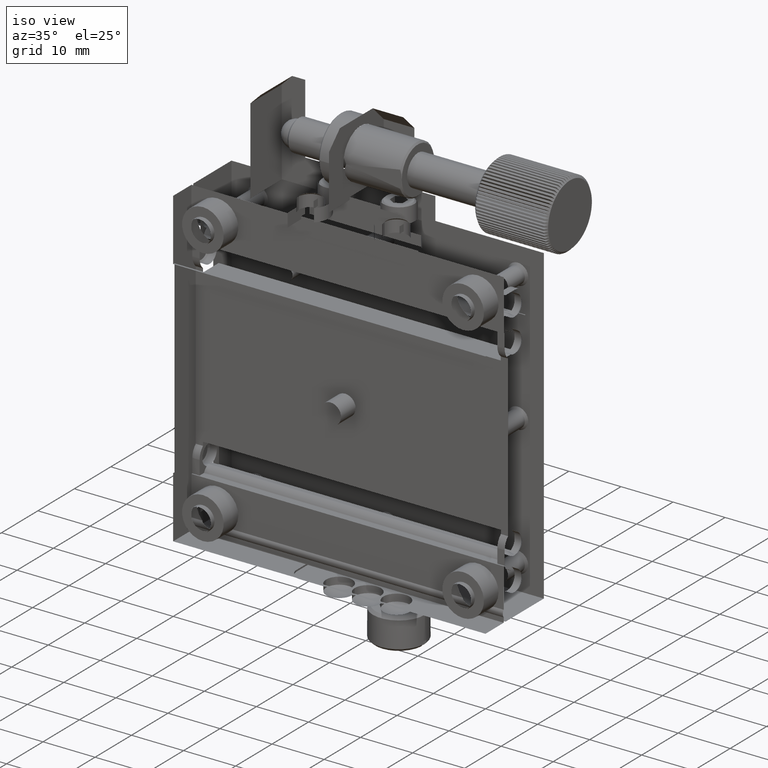
[diagram: clean part render]
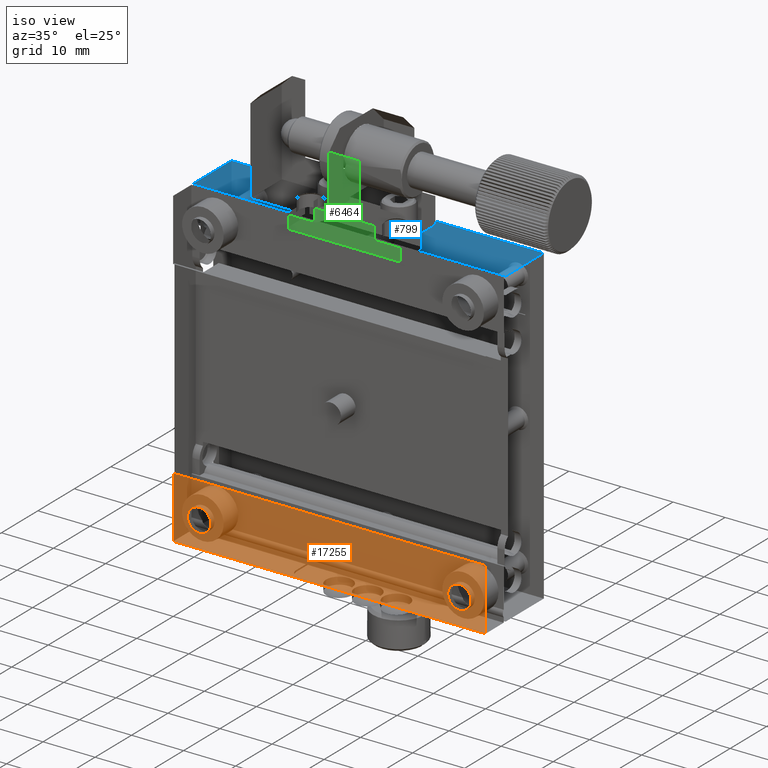
[diagram: same view with three faces highlighted in distinct colors, each labeled with its STEP entity id]
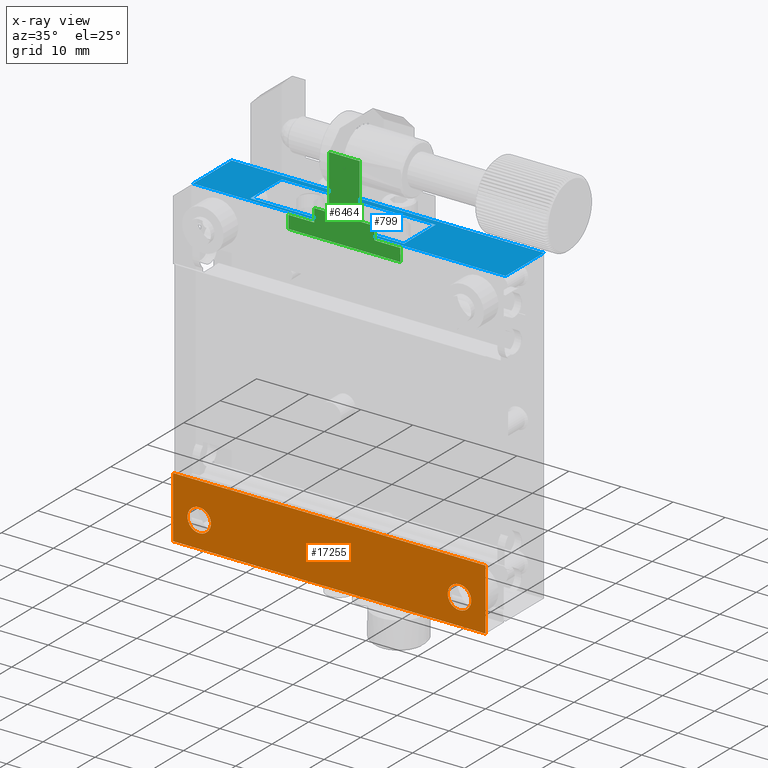
[diagram: x-ray of the same camera — body ghosted, the three highlighted faces saturated]
A machine part, iso view with three faces highlighted in distinct colors.
The next image is the same camera in x-ray (body ghosted, the three faces saturated) — at least one of them is partly hidden behind the body in this view.
Their STEP definitions:

[orange] entity #17255 — the highlighted planar face has unit normal (0, 1, 0).
#211 = CIRCLE ( 'NONE', #15227, 2.250000000000001776 ) ;
#299 = VECTOR ( 'NONE', #8087, 1000.000000000000000 ) ;
#310 = CARTESIAN_POINT ( 'NONE',  ( -30.00000000000000000, 0.000000000000000000, -18.14999999999999858 ) ) ;
#392 = CARTESIAN_POINT ( 'NONE',  ( -25.00000000000000000, 0.000000000000000000, -27.25000000000000355 ) ) ;
#398 = ORIENTED_EDGE ( 'NONE', *, *, #1679, .T. ) ;
#862 = FACE_OUTER_BOUND ( 'NONE', #1036, .T. ) ;
#1036 = EDGE_LOOP ( 'NONE', ( #5930, #7411, #4755, #13296 ) ) ;
#1329 = LINE ( 'NONE', #2738, #5426 ) ;
#1502 = LINE ( 'NONE', #14813, #299 ) ;
#1542 = CARTESIAN_POINT ( 'NONE',  ( 25.00000000000000000, 0.000000000000000000, -25.00000000000000000 ) ) ;
#1679 = EDGE_CURVE ( 'NONE', #12200, #12200, #8575, .T. ) ;
#2049 = VERTEX_POINT ( 'NONE', #11546 ) ;
#2191 = DIRECTION ( 'NONE',  ( 0.000000000000000000, -0.000000000000000000, 1.000000000000000000 ) ) ;
#2738 = CARTESIAN_POINT ( 'NONE',  ( -30.00000000000000000, 0.000000000000000000, -28.39999999999999858 ) ) ;
#3033 = DIRECTION ( 'NONE',  ( 0.000000000000000000, 0.000000000000000000, -1.000000000000000000 ) ) ;
#3508 = VERTEX_POINT ( 'NONE', #310 ) ;
#3601 = AXIS2_PLACEMENT_3D ( 'NONE', #15483, #17001, #2191 ) ;
#4055 = LINE ( 'NONE', #6465, #16948 ) ;
#4341 = VERTEX_POINT ( 'NONE', #5843 ) ;
#4755 = ORIENTED_EDGE ( 'NONE', *, *, #16997, .T. ) ;
#4757 = PLANE ( 'NONE',  #3601 ) ;
#4904 = DIRECTION ( 'NONE',  ( 0.000000000000000000, 0.000000000000000000, -1.000000000000000000 ) ) ;
#5280 = EDGE_LOOP ( 'NONE', ( #398 ) ) ;
#5426 = VECTOR ( 'NONE', #14808, 1000.000000000000000 ) ;
#5843 = CARTESIAN_POINT ( 'NONE',  ( 30.00000000000000000, 0.000000000000000000, -18.14999999999999858 ) ) ;
#5930 = ORIENTED_EDGE ( 'NONE', *, *, #12077, .F. ) ;
#6104 = ORIENTED_EDGE ( 'NONE', *, *, #16292, .T. ) ;
#6465 = CARTESIAN_POINT ( 'NONE',  ( 30.00000000000000000, 0.000000000000000000, -28.39999999999999858 ) ) ;
#6482 = VECTOR ( 'NONE', #8332, 1000.000000000000000 ) ;
#6598 = AXIS2_PLACEMENT_3D ( 'NONE', #15890, #9163, #4904 ) ;
#7013 = EDGE_CURVE ( 'NONE', #13866, #13443, #14974, .T. ) ;
#7411 = ORIENTED_EDGE ( 'NONE', *, *, #9480, .T. ) ;
#8087 = DIRECTION ( 'NONE',  ( 1.000000000000000000, 0.000000000000000000, -0.000000000000000000 ) ) ;
#8332 = DIRECTION ( 'NONE',  ( 1.000000000000000000, 0.000000000000000000, -0.000000000000000000 ) ) ;
#8575 = CIRCLE ( 'NONE', #6598, 2.250000000000001776 ) ;
#9163 = DIRECTION ( 'NONE',  ( 0.000000000000000000, -1.000000000000000000, 0.000000000000000000 ) ) ;
#9480 = EDGE_CURVE ( 'NONE', #3508, #4341, #1502, .T. ) ;
#9620 = DIRECTION ( 'NONE',  ( 0.000000000000000000, -1.000000000000000000, 0.000000000000000000 ) ) ;
#9793 = CARTESIAN_POINT ( 'NONE',  ( -30.00000000000000000, 0.000000000000000000, -30.00000000000000000 ) ) ;
#11546 = CARTESIAN_POINT ( 'NONE',  ( 25.00000000000000000, 0.000000000000000000, -27.25000000000000355 ) ) ;
#11599 = FACE_BOUND ( 'NONE', #11934, .T. ) ;
#11879 = DIRECTION ( 'NONE',  ( 0.000000000000000000, 0.000000000000000000, -1.000000000000000000 ) ) ;
#11934 = EDGE_LOOP ( 'NONE', ( #6104 ) ) ;
#12077 = EDGE_CURVE ( 'NONE', #3508, #13866, #1329, .T. ) ;
#12200 = VERTEX_POINT ( 'NONE', #392 ) ;
#12920 = FACE_BOUND ( 'NONE', #5280, .T. ) ;
#13289 = CARTESIAN_POINT ( 'NONE',  ( 30.00000000000000000, 0.000000000000000000, -30.00000000000000000 ) ) ;
#13296 = ORIENTED_EDGE ( 'NONE', *, *, #7013, .F. ) ;
#13443 = VERTEX_POINT ( 'NONE', #13289 ) ;
#13866 = VERTEX_POINT ( 'NONE', #9793 ) ;
#14808 = DIRECTION ( 'NONE',  ( 0.000000000000000000, 0.000000000000000000, -1.000000000000000000 ) ) ;
#14813 = CARTESIAN_POINT ( 'NONE',  ( 30.00000000000000000, 0.000000000000000000, -18.14999999999999858 ) ) ;
#14974 = LINE ( 'NONE', #16561, #6482 ) ;
#15227 = AXIS2_PLACEMENT_3D ( 'NONE', #1542, #9620, #3033 ) ;
#15483 = CARTESIAN_POINT ( 'NONE',  ( 30.00000000000000000, 0.000000000000000000, 30.00000000000000000 ) ) ;
#15890 = CARTESIAN_POINT ( 'NONE',  ( -25.00000000000000000, 0.000000000000000000, -25.00000000000000000 ) ) ;
#16292 = EDGE_CURVE ( 'NONE', #2049, #2049, #211, .T. ) ;
#16561 = CARTESIAN_POINT ( 'NONE',  ( 30.00000000000000000, 0.000000000000000000, -30.00000000000000000 ) ) ;
#16948 = VECTOR ( 'NONE', #11879, 1000.000000000000000 ) ;
#16997 = EDGE_CURVE ( 'NONE', #4341, #13443, #4055, .T. ) ;
#17001 = DIRECTION ( 'NONE',  ( 0.000000000000000000, 1.000000000000000000, 0.000000000000000000 ) ) ;
#17255 = ADVANCED_FACE ( 'NONE', ( #862, #12920, #11599 ), #4757, .T. ) ;

[blue] entity #799 — the highlighted planar face has unit normal (0, 0, -1).
#224 = ORIENTED_EDGE ( 'NONE', *, *, #14556, .T. ) ;
#422 = CARTESIAN_POINT ( 'NONE',  ( 30.00000000000000000, 16.00000000000000000, 30.00000000000000000 ) ) ;
#772 = VECTOR ( 'NONE', #14018, 1000.000000000000000 ) ;
#799 = ADVANCED_FACE ( 'NONE', ( #16323, #6924 ), #4175, .T. ) ;
#1183 = CARTESIAN_POINT ( 'NONE',  ( 30.00000000000000000, 16.00000000000000000, 30.00000000000000000 ) ) ;
#1200 = AXIS2_PLACEMENT_3D ( 'NONE', #13670, #1514, #9594 ) ;
#1325 = VERTEX_POINT ( 'NONE', #6190 ) ;
#1514 = DIRECTION ( 'NONE',  ( 0.000000000000000000, 0.000000000000000000, -1.000000000000000000 ) ) ;
#1820 = VECTOR ( 'NONE', #14082, 1000.000000000000000 ) ;
#1916 = VERTEX_POINT ( 'NONE', #5142 ) ;
#2534 = CARTESIAN_POINT ( 'NONE',  ( 30.00000000000000000, 6.200000000000001954, 30.00000000000000000 ) ) ;
#3056 = EDGE_CURVE ( 'NONE', #17071, #8473, #7338, .T. ) ;
#3934 = CARTESIAN_POINT ( 'NONE',  ( 30.00000000000000000, 14.80000000000000071, 30.00000000000000000 ) ) ;
#4175 = PLANE ( 'NONE',  #1200 ) ;
#4332 = CARTESIAN_POINT ( 'NONE',  ( 10.00000000000000178, 16.00000000000000000, 30.00000000000000000 ) ) ;
#4464 = DIRECTION ( 'NONE',  ( -0.000000000000000000, -1.000000000000000000, -0.000000000000000000 ) ) ;
#4506 = EDGE_CURVE ( 'NONE', #8473, #1916, #10120, .T. ) ;
#4741 = ORIENTED_EDGE ( 'NONE', *, *, #11220, .T. ) ;
#5142 = CARTESIAN_POINT ( 'NONE',  ( -30.00000000000000000, 5.500000000000001776, 30.00000000000000000 ) ) ;
#6190 = CARTESIAN_POINT ( 'NONE',  ( 10.00000000000000178, 6.200000000000001954, 30.00000000000000000 ) ) ;
#6888 = CARTESIAN_POINT ( 'NONE',  ( -30.00000000000000000, 16.00000000000000000, 30.00000000000000000 ) ) ;
#6924 = FACE_OUTER_BOUND ( 'NONE', #7079, .T. ) ;
#7079 = EDGE_LOOP ( 'NONE', ( #8612, #10943, #14279, #16539 ) ) ;
#7338 = LINE ( 'NONE', #422, #1820 ) ;
#7522 = EDGE_CURVE ( 'NONE', #10204, #1916, #8833, .T. ) ;
#7849 = DIRECTION ( 'NONE',  ( -1.000000000000000000, 0.000000000000000000, -0.000000000000000000 ) ) ;
#8256 = LINE ( 'NONE', #4332, #15993 ) ;
#8473 = VERTEX_POINT ( 'NONE', #6888 ) ;
#8528 = VECTOR ( 'NONE', #7849, 1000.000000000000000 ) ;
#8612 = ORIENTED_EDGE ( 'NONE', *, *, #7522, .T. ) ;
#8790 = EDGE_LOOP ( 'NONE', ( #224, #4741, #8893, #12033 ) ) ;
#8833 = LINE ( 'NONE', #13000, #15830 ) ;
#8893 = ORIENTED_EDGE ( 'NONE', *, *, #17559, .T. ) ;
#9060 = CARTESIAN_POINT ( 'NONE',  ( -19.50000000000000355, 6.200000000000001954, 30.00000000000000000 ) ) ;
#9319 = VERTEX_POINT ( 'NONE', #14453 ) ;
#9594 = DIRECTION ( 'NONE',  ( -1.000000000000000000, 0.000000000000000000, -0.000000000000000000 ) ) ;
#10120 = LINE ( 'NONE', #14195, #772 ) ;
#10204 = VERTEX_POINT ( 'NONE', #15268 ) ;
#10943 = ORIENTED_EDGE ( 'NONE', *, *, #4506, .F. ) ;
#11122 = LINE ( 'NONE', #12289, #14389 ) ;
#11220 = EDGE_CURVE ( 'NONE', #16356, #9319, #16091, .T. ) ;
#11883 = VERTEX_POINT ( 'NONE', #9060 ) ;
#12009 = LINE ( 'NONE', #1183, #13158 ) ;
#12033 = ORIENTED_EDGE ( 'NONE', *, *, #17436, .T. ) ;
#12289 = CARTESIAN_POINT ( 'NONE',  ( -19.50000000000000355, 16.00000000000000000, 30.00000000000000000 ) ) ;
#13000 = CARTESIAN_POINT ( 'NONE',  ( 30.00000000000000000, 5.500000000000001776, 30.00000000000000000 ) ) ;
#13158 = VECTOR ( 'NONE', #14576, 1000.000000000000000 ) ;
#13670 = CARTESIAN_POINT ( 'NONE',  ( 30.00000000000000000, 16.00000000000000000, 30.00000000000000000 ) ) ;
#13810 = CARTESIAN_POINT ( 'NONE',  ( 30.00000000000000000, 16.00000000000000000, 30.00000000000000000 ) ) ;
#13865 = CARTESIAN_POINT ( 'NONE',  ( 10.00000000000000178, 14.80000000000000071, 30.00000000000000000 ) ) ;
#13972 = DIRECTION ( 'NONE',  ( -1.000000000000000000, 0.000000000000000000, -0.000000000000000000 ) ) ;
#14018 = DIRECTION ( 'NONE',  ( -0.000000000000000000, -1.000000000000000000, -0.000000000000000000 ) ) ;
#14082 = DIRECTION ( 'NONE',  ( -1.000000000000000000, -0.000000000000000000, -0.000000000000000000 ) ) ;
#14103 = EDGE_CURVE ( 'NONE', #17071, #10204, #12009, .T. ) ;
#14195 = CARTESIAN_POINT ( 'NONE',  ( -30.00000000000000000, 8.050000000000000711, 30.00000000000000000 ) ) ;
#14279 = ORIENTED_EDGE ( 'NONE', *, *, #3056, .F. ) ;
#14389 = VECTOR ( 'NONE', #4464, 1000.000000000000000 ) ;
#14453 = CARTESIAN_POINT ( 'NONE',  ( -19.50000000000000355, 14.80000000000000071, 30.00000000000000000 ) ) ;
#14556 = EDGE_CURVE ( 'NONE', #1325, #16356, #8256, .T. ) ;
#14576 = DIRECTION ( 'NONE',  ( -0.000000000000000000, -1.000000000000000000, -0.000000000000000000 ) ) ;
#15211 = VECTOR ( 'NONE', #17257, 1000.000000000000000 ) ;
#15268 = CARTESIAN_POINT ( 'NONE',  ( 30.00000000000000000, 5.500000000000001776, 30.00000000000000000 ) ) ;
#15830 = VECTOR ( 'NONE', #13972, 1000.000000000000000 ) ;
#15993 = VECTOR ( 'NONE', #16236, 1000.000000000000000 ) ;
#16091 = LINE ( 'NONE', #3934, #8528 ) ;
#16103 = LINE ( 'NONE', #2534, #15211 ) ;
#16236 = DIRECTION ( 'NONE',  ( 0.000000000000000000, 1.000000000000000000, 0.000000000000000000 ) ) ;
#16323 = FACE_BOUND ( 'NONE', #8790, .T. ) ;
#16356 = VERTEX_POINT ( 'NONE', #13865 ) ;
#16539 = ORIENTED_EDGE ( 'NONE', *, *, #14103, .T. ) ;
#17071 = VERTEX_POINT ( 'NONE', #13810 ) ;
#17257 = DIRECTION ( 'NONE',  ( 1.000000000000000000, -0.000000000000000000, 0.000000000000000000 ) ) ;
#17436 = EDGE_CURVE ( 'NONE', #11883, #1325, #16103, .T. ) ;
#17559 = EDGE_CURVE ( 'NONE', #9319, #11883, #11122, .T. ) ;

[green] entity #6464 — the highlighted planar face has unit normal (-0, -1, 0).
#121 = CARTESIAN_POINT ( 'NONE',  ( 0.000000000000000000, 0.1999999999999959033, 32.50000000000000000 ) ) ;
#148 = EDGE_CURVE ( 'NONE', #4128, #17031, #1193, .T. ) ;
#151 = LINE ( 'NONE', #13726, #5844 ) ;
#239 = CARTESIAN_POINT ( 'NONE',  ( -3.050510257216836330, 0.1999999999999959588, 32.50000000000000000 ) ) ;
#723 = CARTESIAN_POINT ( 'NONE',  ( -0.2000000000000013989, 0.1999999999999959865, 35.00000000000000000 ) ) ;
#1017 = PLANE ( 'NONE',  #13250 ) ;
#1162 = CARTESIAN_POINT ( 'NONE',  ( -8.000000000000000000, 0.1999999999999959588, 32.50000000000000000 ) ) ;
#1193 = LINE ( 'NONE', #12997, #9942 ) ;
#1216 = EDGE_CURVE ( 'NONE', #1871, #16586, #8589, .T. ) ;
#1257 = LINE ( 'NONE', #6659, #10991 ) ;
#1457 = LINE ( 'NONE', #121, #3326 ) ;
#1569 = DIRECTION ( 'NONE',  ( -1.000000000000000000, 2.521400401129079936E-18, -0.000000000000000000 ) ) ;
#1871 = VERTEX_POINT ( 'NONE', #6658 ) ;
#2066 = CARTESIAN_POINT ( 'NONE',  ( 8.550510257216823007, 0.1999999999999959588, 35.00000000000000000 ) ) ;
#2103 = ORIENTED_EDGE ( 'NONE', *, *, #10789, .F. ) ;
#2104 = DIRECTION ( 'NONE',  ( 1.000000000000000000, 0.000000000000000000, -0.000000000000000000 ) ) ;
#2436 = ORIENTED_EDGE ( 'NONE', *, *, #5169, .T. ) ;
#2463 = CARTESIAN_POINT ( 'NONE',  ( -0.2000000000000012601, 0.1999999999999956257, 45.50000000000000711 ) ) ;
#2517 = DIRECTION ( 'NONE',  ( 1.000000000000000000, -2.521400401129079936E-18, 0.000000000000000000 ) ) ;
#2565 = VERTEX_POINT ( 'NONE', #9445 ) ;
#2619 = DIRECTION ( 'NONE',  ( 0.000000000000000000, 0.000000000000000000, 1.000000000000000000 ) ) ;
#2717 = CARTESIAN_POINT ( 'NONE',  ( 8.550510257216821230, 0.1999999999999959310, 30.00000000000000000 ) ) ;
#2857 = CARTESIAN_POINT ( 'NONE',  ( 5.700000000000000178, 0.1999999999999979294, 45.50000000000000711 ) ) ;
#3326 = VECTOR ( 'NONE', #15018, 1000.000000000000000 ) ;
#3660 = FACE_OUTER_BOUND ( 'NONE', #16777, .T. ) ;
#4029 = VECTOR ( 'NONE', #13285, 1000.000000000000000 ) ;
#4045 = CARTESIAN_POINT ( 'NONE',  ( 13.50000000000000178, 0.1999999999999976796, 30.00000000000000000 ) ) ;
#4112 = CARTESIAN_POINT ( 'NONE',  ( 13.52499999999999858, 0.2249999999999948985, 30.02499999999999858 ) ) ;
#4128 = VERTEX_POINT ( 'NONE', #2066 ) ;
#4286 = EDGE_CURVE ( 'NONE', #15383, #8000, #5413, .T. ) ;
#4610 = ORIENTED_EDGE ( 'NONE', *, *, #4286, .F. ) ;
#4876 = CARTESIAN_POINT ( 'NONE',  ( -3.050510257216835885, 0.1999999999999959865, 30.00000000000000000 ) ) ;
#4947 = ORIENTED_EDGE ( 'NONE', *, *, #8349, .T. ) ;
#5029 = VERTEX_POINT ( 'NONE', #4112 ) ;
#5169 = EDGE_CURVE ( 'NONE', #16586, #17201, #1457, .T. ) ;
#5413 = LINE ( 'NONE', #11911, #10642 ) ;
#5844 = VECTOR ( 'NONE', #1569, 1000.000000000000000 ) ;
#6151 = VECTOR ( 'NONE', #2619, 1000.000000000000000 ) ;
#6207 = DIRECTION ( 'NONE',  ( -0.000000000000000000, -0.000000000000000000, -1.000000000000000000 ) ) ;
#6335 = DIRECTION ( 'NONE',  ( -2.521400401129079936E-18, -1.000000000000000000, 0.000000000000000000 ) ) ;
#6377 = ORIENTED_EDGE ( 'NONE', *, *, #17368, .F. ) ;
#6464 = ADVANCED_FACE ( 'NONE', ( #3660 ), #1017, .F. ) ;
#6658 = CARTESIAN_POINT ( 'NONE',  ( -8.025000000000000355, 0.2249999999999954536, 30.02499999999999503 ) ) ;
#6659 = CARTESIAN_POINT ( 'NONE',  ( -0.2000000000000013989, 0.1999999999999959588, 30.00000000000000000 ) ) ;
#7151 = ORIENTED_EDGE ( 'NONE', *, *, #1216, .T. ) ;
#7152 = ORIENTED_EDGE ( 'NONE', *, *, #17191, .F. ) ;
#7589 = DIRECTION ( 'NONE',  ( -1.000000000000000000, 2.521400401129079936E-18, -0.000000000000000000 ) ) ;
#7962 = LINE ( 'NONE', #4045, #11036 ) ;
#8000 = VERTEX_POINT ( 'NONE', #11473 ) ;
#8349 = EDGE_CURVE ( 'NONE', #8812, #5029, #7962, .T. ) ;
#8490 = VECTOR ( 'NONE', #15215, 1000.000000000000000 ) ;
#8498 = EDGE_CURVE ( 'NONE', #1871, #5029, #13882, .T. ) ;
#8589 = LINE ( 'NONE', #12407, #10559 ) ;
#8662 = CARTESIAN_POINT ( 'NONE',  ( 0.000000000000000000, 0.1999999999999959588, 32.50000000000000000 ) ) ;
#8676 = DIRECTION ( 'NONE',  ( 0.000000000000000000, 0.000000000000000000, 1.000000000000000000 ) ) ;
#8812 = VERTEX_POINT ( 'NONE', #14678 ) ;
#9445 = CARTESIAN_POINT ( 'NONE',  ( 8.550510257216823007, 0.1999999999999959588, 32.50000000000000000 ) ) ;
#9648 = VERTEX_POINT ( 'NONE', #2463 ) ;
#9807 = CARTESIAN_POINT ( 'NONE',  ( -8.000000000000000000, 0.1999999999999959865, 30.00000000000000000 ) ) ;
#9942 = VECTOR ( 'NONE', #7589, 1000.000000000000000 ) ;
#10294 = ORIENTED_EDGE ( 'NONE', *, *, #12381, .F. ) ;
#10362 = CARTESIAN_POINT ( 'NONE',  ( 5.700000000000000178, 0.1999999999999959588, 30.00000000000000000 ) ) ;
#10559 = VECTOR ( 'NONE', #8676, 1000.000000000000000 ) ;
#10642 = VECTOR ( 'NONE', #17313, 1000.000000000000000 ) ;
#10789 = EDGE_CURVE ( 'NONE', #8000, #17201, #11887, .T. ) ;
#10991 = VECTOR ( 'NONE', #17478, 1000.000000000000000 ) ;
#11036 = VECTOR ( 'NONE', #15704, 1000.000000000000000 ) ;
#11147 = VECTOR ( 'NONE', #2104, 1000.000000000000000 ) ;
#11304 = VERTEX_POINT ( 'NONE', #2857 ) ;
#11473 = CARTESIAN_POINT ( 'NONE',  ( -3.050510257216835885, 0.1999999999999960698, 35.00000000000000000 ) ) ;
#11887 = LINE ( 'NONE', #4876, #17345 ) ;
#11911 = CARTESIAN_POINT ( 'NONE',  ( -8.000000000000000000, 0.1999999999999959865, 35.00000000000000000 ) ) ;
#12381 = EDGE_CURVE ( 'NONE', #2565, #4128, #13552, .T. ) ;
#12407 = CARTESIAN_POINT ( 'NONE',  ( -8.000000000000000000, 0.1999999999999960698, 30.00000000000000000 ) ) ;
#12433 = ORIENTED_EDGE ( 'NONE', *, *, #148, .F. ) ;
#12997 = CARTESIAN_POINT ( 'NONE',  ( -8.000000000000000000, 0.1999999999999959865, 35.00000000000000000 ) ) ;
#13010 = LINE ( 'NONE', #8662, #11147 ) ;
#13082 = CARTESIAN_POINT ( 'NONE',  ( -8.000000000000000000, 0.1999999999999959865, 30.00000000000000000 ) ) ;
#13250 = AXIS2_PLACEMENT_3D ( 'NONE', #13082, #6335, #2517 ) ;
#13285 = DIRECTION ( 'NONE',  ( 0.000000000000000000, 0.000000000000000000, 1.000000000000000000 ) ) ;
#13552 = LINE ( 'NONE', #2717, #4029 ) ;
#13655 = EDGE_CURVE ( 'NONE', #2565, #8812, #13010, .T. ) ;
#13726 = CARTESIAN_POINT ( 'NONE',  ( -8.000000000000000000, 0.1999999999999959865, 45.50000000000000711 ) ) ;
#13882 = LINE ( 'NONE', #9807, #8490 ) ;
#14585 = ORIENTED_EDGE ( 'NONE', *, *, #16662, .F. ) ;
#14616 = CARTESIAN_POINT ( 'NONE',  ( 5.700000000000000178, 0.1999999999999959588, 35.00000000000000000 ) ) ;
#14678 = CARTESIAN_POINT ( 'NONE',  ( 13.50000000000000355, 0.1999999999999969857, 32.50000000000000000 ) ) ;
#15018 = DIRECTION ( 'NONE',  ( 1.000000000000000000, 0.000000000000000000, -0.000000000000000000 ) ) ;
#15215 = DIRECTION ( 'NONE',  ( 1.000000000000000000, -2.521400401129079936E-18, 0.000000000000000000 ) ) ;
#15383 = VERTEX_POINT ( 'NONE', #723 ) ;
#15704 = DIRECTION ( 'NONE',  ( 0.000000000000000000, -0.000000000000000000, -1.000000000000000000 ) ) ;
#16190 = ORIENTED_EDGE ( 'NONE', *, *, #8498, .F. ) ;
#16586 = VERTEX_POINT ( 'NONE', #1162 ) ;
#16662 = EDGE_CURVE ( 'NONE', #9648, #15383, #1257, .T. ) ;
#16739 = ORIENTED_EDGE ( 'NONE', *, *, #13655, .T. ) ;
#16777 = EDGE_LOOP ( 'NONE', ( #4947, #16190, #7151, #2436, #2103, #4610, #14585, #7152, #6377, #12433, #10294, #16739 ) ) ;
#17031 = VERTEX_POINT ( 'NONE', #14616 ) ;
#17093 = LINE ( 'NONE', #10362, #6151 ) ;
#17191 = EDGE_CURVE ( 'NONE', #11304, #9648, #151, .T. ) ;
#17201 = VERTEX_POINT ( 'NONE', #239 ) ;
#17313 = DIRECTION ( 'NONE',  ( -1.000000000000000000, 2.521400401129079936E-18, -0.000000000000000000 ) ) ;
#17345 = VECTOR ( 'NONE', #6207, 1000.000000000000000 ) ;
#17368 = EDGE_CURVE ( 'NONE', #17031, #11304, #17093, .T. ) ;
#17478 = DIRECTION ( 'NONE',  ( -0.000000000000000000, -0.000000000000000000, -1.000000000000000000 ) ) ;